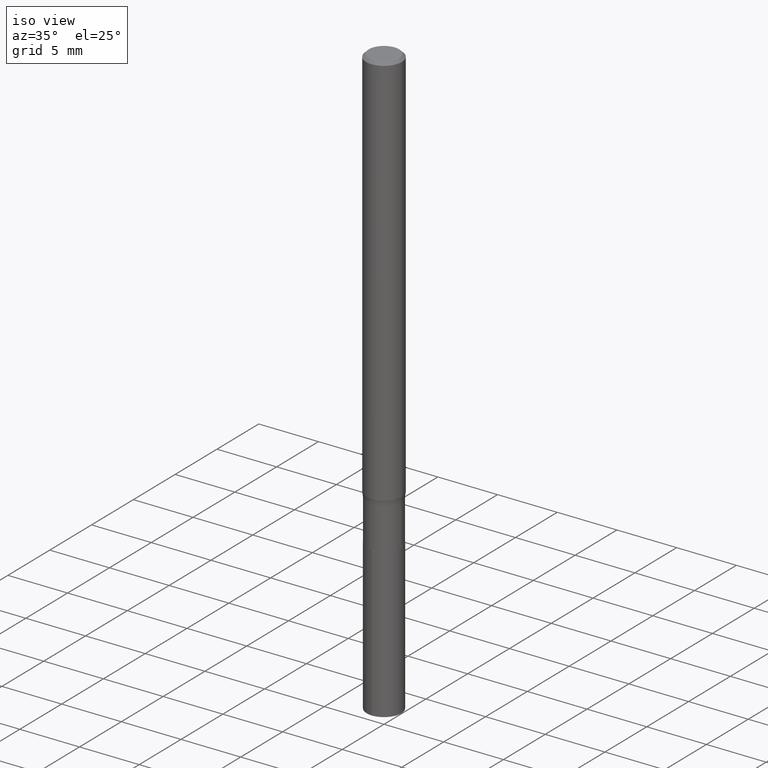
[diagram: clean part render]
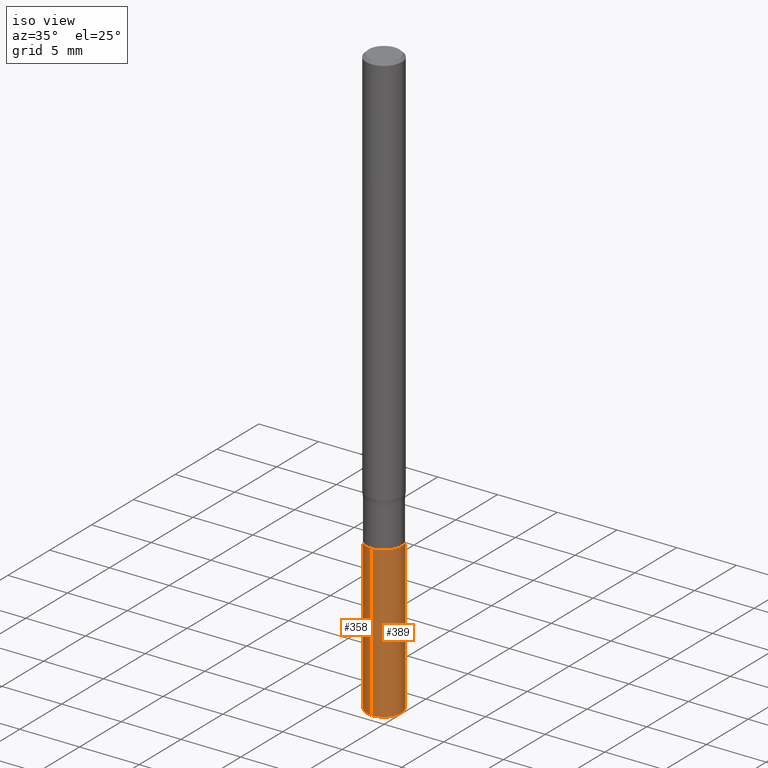
[diagram: same view with one multi-face feature highlighted, each face labeled with its STEP entity id]
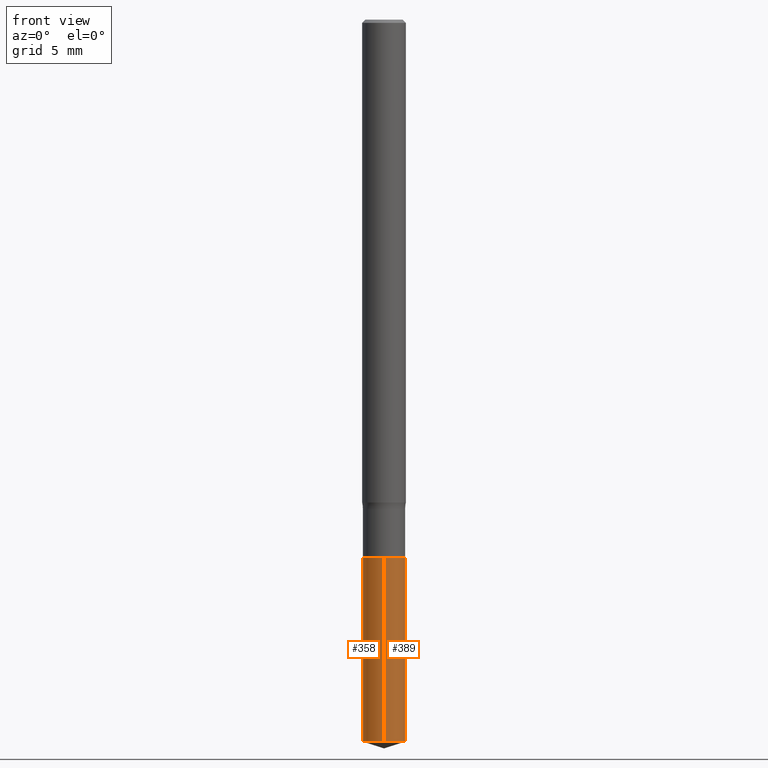
[diagram: same view with one multi-face feature highlighted, each face labeled with its STEP entity id]
A machine part, iso view. The highlighted faces form ONE feature: a constant-radius fillet chain: 2 tangent blend faces with common blend radius 1.4503 mm. The faces share edges in the B-rep.
A second angle (front view) of the same feature is appended — it is thin or edge-on in the first view.
Their STEP definitions:
[1] entity #389 (Cylinder):
#7 = DIRECTION ( 'NONE',  ( -2.445489378185241171E-29, 3.491451878568109799E-15, 1.000000000000000000 ) ) ;
#15 = AXIS2_PLACEMENT_3D ( 'NONE', #25, #80, #200 ) ;
#25 = CARTESIAN_POINT ( 'NONE',  ( 4.769888437139961076E-29, -6.810107256515741243E-15, -1.950496439155010142 ) ) ;
#34 = EDGE_CURVE ( 'NONE', #490, #153, #95, .T. ) ;
#35 = ORIENTED_EDGE ( 'NONE', *, *, #88, .F. ) ;
#47 = CARTESIAN_POINT ( 'NONE',  ( -3.987271688958501652E-16, -0.05710000000000506337, -1.452799999999999647 ) ) ;
#49 = DIRECTION ( 'NONE',  ( -2.445489378185241451E-29, 3.491451878568109799E-15, 1.000000000000000000 ) ) ;
#80 = DIRECTION ( 'NONE',  ( -2.445489378185241451E-29, 3.491451878568109799E-15, 1.000000000000000000 ) ) ;
#81 = EDGE_CURVE ( 'NONE', #490, #334, #388, .T. ) ;
#88 = EDGE_CURVE ( 'NONE', #334, #108, #183, .T. ) ;
#95 = CIRCLE ( 'NONE', #15, 0.05709999999999999798 ) ;
#97 = DIRECTION ( 'NONE',  ( -6.982962677686265133E-15, -1.000000000000000000, 4.784322230585399479E-15 ) ) ;
#108 = VERTEX_POINT ( 'NONE', #258 ) ;
#117 = CYLINDRICAL_SURFACE ( 'NONE', #311, 0.05709999999999999798 ) ;
#118 = VECTOR ( 'NONE', #7, 39.37007874015748143 ) ;
#124 = VECTOR ( 'NONE', #225, 39.37007874015748143 ) ;
#134 = DIRECTION ( 'NONE',  ( -2.445489378185241451E-29, 3.491451878568109799E-15, 1.000000000000000000 ) ) ;
#137 = CARTESIAN_POINT ( 'NONE',  ( 4.057199021190526412E-16, 0.05709999999999492565, -1.452800000000000091 ) ) ;
#145 = ORIENTED_EDGE ( 'NONE', *, *, #34, .T. ) ;
#153 = VERTEX_POINT ( 'NONE', #222 ) ;
#183 = CIRCLE ( 'NONE', #317, 0.05709999999999999798 ) ;
#188 = CARTESIAN_POINT ( 'NONE',  ( -3.987271688958501652E-16, -0.05710000000000506337, -1.452799999999999647 ) ) ;
#200 = DIRECTION ( 'NONE',  ( -6.982962677686265133E-15, -1.000000000000000000, 4.784322230585399479E-15 ) ) ;
#209 = DIRECTION ( 'NONE',  ( -6.982962677686265133E-15, -1.000000000000000000, 4.784322230585399479E-15 ) ) ;
#222 = CARTESIAN_POINT ( 'NONE',  ( 4.057199021190646713E-16, 0.05709999999999316317, -1.950496439155010586 ) ) ;
#225 = DIRECTION ( 'NONE',  ( -2.445489378185241171E-29, 3.491451878568109799E-15, 1.000000000000000000 ) ) ;
#249 = FACE_OUTER_BOUND ( 'NONE', #265, .T. ) ;
#255 = EDGE_CURVE ( 'NONE', #153, #108, #449, .T. ) ;
#258 = CARTESIAN_POINT ( 'NONE',  ( 4.057199021190649179E-16, 0.05709999999999492565, -1.452800000000000091 ) ) ;
#265 = EDGE_LOOP ( 'NONE', ( #145, #381, #35, #436 ) ) ;
#284 = CARTESIAN_POINT ( 'NONE',  ( 3.552777081625765848E-29, -5.072424089071321929E-15, -1.452799999999999869 ) ) ;
#311 = AXIS2_PLACEMENT_3D ( 'NONE', #284, #49, #209 ) ;
#317 = AXIS2_PLACEMENT_3D ( 'NONE', #469, #134, #97 ) ;
#334 = VERTEX_POINT ( 'NONE', #188 ) ;
#381 = ORIENTED_EDGE ( 'NONE', *, *, #255, .T. ) ;
#388 = LINE ( 'NONE', #47, #118 ) ;
#389 = ADVANCED_FACE ( 'NONE', ( #249 ), #117, .T. ) ;
#434 = CARTESIAN_POINT ( 'NONE',  ( -3.987271688958379871E-16, -0.05710000000000679116, -1.950496439155009920 ) ) ;
#436 = ORIENTED_EDGE ( 'NONE', *, *, #81, .F. ) ;
#449 = LINE ( 'NONE', #137, #124 ) ;
#469 = CARTESIAN_POINT ( 'NONE',  ( 3.552777081625765848E-29, -5.072424089071321929E-15, -1.452799999999999869 ) ) ;
#490 = VERTEX_POINT ( 'NONE', #434 ) ;
[2] entity #358 (Cylinder):
#7 = DIRECTION ( 'NONE',  ( -2.445489378185241171E-29, 3.491451878568109799E-15, 1.000000000000000000 ) ) ;
#32 = DIRECTION ( 'NONE',  ( -2.445489378185241451E-29, 3.491451878568109799E-15, 1.000000000000000000 ) ) ;
#47 = CARTESIAN_POINT ( 'NONE',  ( -3.987271688958501652E-16, -0.05710000000000506337, -1.452799999999999647 ) ) ;
#78 = AXIS2_PLACEMENT_3D ( 'NONE', #376, #374, #312 ) ;
#81 = EDGE_CURVE ( 'NONE', #490, #334, #388, .T. ) ;
#96 = CIRCLE ( 'NONE', #78, 0.05709999999999999798 ) ;
#106 = FACE_OUTER_BOUND ( 'NONE', #135, .T. ) ;
#108 = VERTEX_POINT ( 'NONE', #258 ) ;
#118 = VECTOR ( 'NONE', #7, 39.37007874015748143 ) ;
#124 = VECTOR ( 'NONE', #225, 39.37007874015748143 ) ;
#135 = EDGE_LOOP ( 'NONE', ( #217, #373, #279, #292 ) ) ;
#137 = CARTESIAN_POINT ( 'NONE',  ( 4.057199021190526412E-16, 0.05709999999999492565, -1.452800000000000091 ) ) ;
#146 = CYLINDRICAL_SURFACE ( 'NONE', #472, 0.05709999999999999798 ) ;
#153 = VERTEX_POINT ( 'NONE', #222 ) ;
#188 = CARTESIAN_POINT ( 'NONE',  ( -3.987271688958501652E-16, -0.05710000000000506337, -1.452799999999999647 ) ) ;
#196 = CARTESIAN_POINT ( 'NONE',  ( 4.769888437139961076E-29, -6.810107256515741243E-15, -1.950496439155010142 ) ) ;
#217 = ORIENTED_EDGE ( 'NONE', *, *, #255, .F. ) ;
#222 = CARTESIAN_POINT ( 'NONE',  ( 4.057199021190646713E-16, 0.05709999999999316317, -1.950496439155010586 ) ) ;
#225 = DIRECTION ( 'NONE',  ( -2.445489378185241171E-29, 3.491451878568109799E-15, 1.000000000000000000 ) ) ;
#255 = EDGE_CURVE ( 'NONE', #153, #108, #449, .T. ) ;
#258 = CARTESIAN_POINT ( 'NONE',  ( 4.057199021190649179E-16, 0.05709999999999492565, -1.452800000000000091 ) ) ;
#259 = EDGE_CURVE ( 'NONE', #153, #490, #432, .T. ) ;
#279 = ORIENTED_EDGE ( 'NONE', *, *, #81, .T. ) ;
#282 = EDGE_CURVE ( 'NONE', #108, #334, #96, .T. ) ;
#292 = ORIENTED_EDGE ( 'NONE', *, *, #282, .F. ) ;
#310 = DIRECTION ( 'NONE',  ( -2.445489378185241451E-29, 3.491451878568109799E-15, 1.000000000000000000 ) ) ;
#312 = DIRECTION ( 'NONE',  ( -6.982962677686265133E-15, -1.000000000000000000, 4.784322230585399479E-15 ) ) ;
#334 = VERTEX_POINT ( 'NONE', #188 ) ;
#350 = CARTESIAN_POINT ( 'NONE',  ( 3.552777081625765848E-29, -5.072424089071321929E-15, -1.452799999999999869 ) ) ;
#358 = ADVANCED_FACE ( 'NONE', ( #106 ), #146, .T. ) ;
#373 = ORIENTED_EDGE ( 'NONE', *, *, #259, .T. ) ;
#374 = DIRECTION ( 'NONE',  ( -2.445489378185241451E-29, 3.491451878568109799E-15, 1.000000000000000000 ) ) ;
#376 = CARTESIAN_POINT ( 'NONE',  ( 3.552777081625765848E-29, -5.072424089071321929E-15, -1.452799999999999869 ) ) ;
#388 = LINE ( 'NONE', #47, #118 ) ;
#405 = AXIS2_PLACEMENT_3D ( 'NONE', #196, #32, #481 ) ;
#408 = DIRECTION ( 'NONE',  ( -6.982962677686265133E-15, -1.000000000000000000, 4.784322230585399479E-15 ) ) ;
#432 = CIRCLE ( 'NONE', #405, 0.05709999999999999798 ) ;
#434 = CARTESIAN_POINT ( 'NONE',  ( -3.987271688958379871E-16, -0.05710000000000679116, -1.950496439155009920 ) ) ;
#449 = LINE ( 'NONE', #137, #124 ) ;
#472 = AXIS2_PLACEMENT_3D ( 'NONE', #350, #310, #408 ) ;
#481 = DIRECTION ( 'NONE',  ( -6.982962677686265133E-15, -1.000000000000000000, 4.784322230585399479E-15 ) ) ;
#490 = VERTEX_POINT ( 'NONE', #434 ) ;